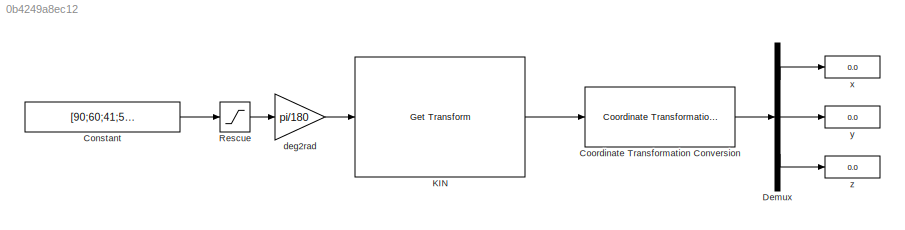
MODEL slx_0b4249a8ec12
KIND model
CONFIG AbsTol = auto
CONFIG EnableMultiTasking = off
CONFIG FixedStep = auto
CONFIG MaxStep = auto
CONFIG MinStep = auto
CONFIG RelTol = 1e-3
CONFIG SampleTimeConstraint = Unconstrained
CONFIG SolverName = VariableStepAuto
CONFIG StartTime = 0.0
CONFIG StopTime = 10.0
BLOCK [Constant] Constant
  Value = [90;60;41;51;0;73]
BLOCK [Reference] Coordinate Transformation Conversion  REF=robotcorelib/Coordinate Transformation Conversion
  SourceBlock = robotcorelib/Coordinate Transformation Conversion
  SourceType = robotics.slcore.internal.block.CoordinateTransformationConversion
BLOCK [Demux] Demux
  Outputs = 3
BLOCK [Reference] KIN  REF=robotmaniplib/Get Transform
  SourceBlock = robotmaniplib/Get Transform
  SourceType = Get Transform
BLOCK [Saturate] Rescue
  LowerLimit = adMotorLimits(:,1)
  UpperLimit = adMotorLimits(:,2)
BLOCK [Gain] deg2rad
  Gain = pi/180
BLOCK [Display] x
  Decimation = 1
BLOCK [Display] y
  Decimation = 1
BLOCK [Display] z
  Decimation = 1
LINE Constant:1 -> Rescue:1
LINE Coordinate Transformation Conversion:1 -> Demux:1
LINE Demux:1 -> x:1
LINE Demux:2 -> y:1
LINE Demux:3 -> z:1
LINE KIN:1 -> Coordinate Transformation Conversion:1
LINE Rescue:1 -> deg2rad:1
LINE deg2rad:1 -> KIN:1
